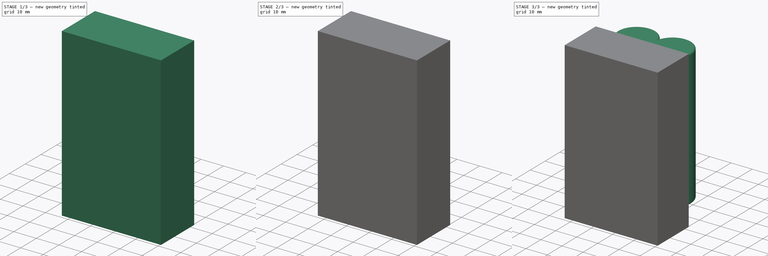
[diagram: build sequence overview — one tinted view per stage of 3, left to right]
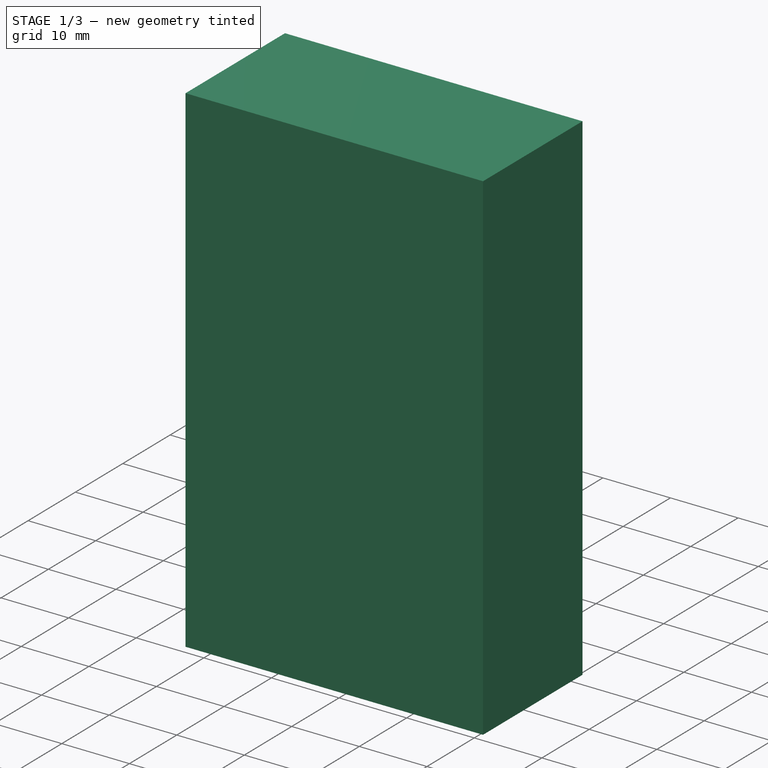
[diagram: stage 1 of 3 — iso view after this stage's code; geometry added in this stage tinted green]
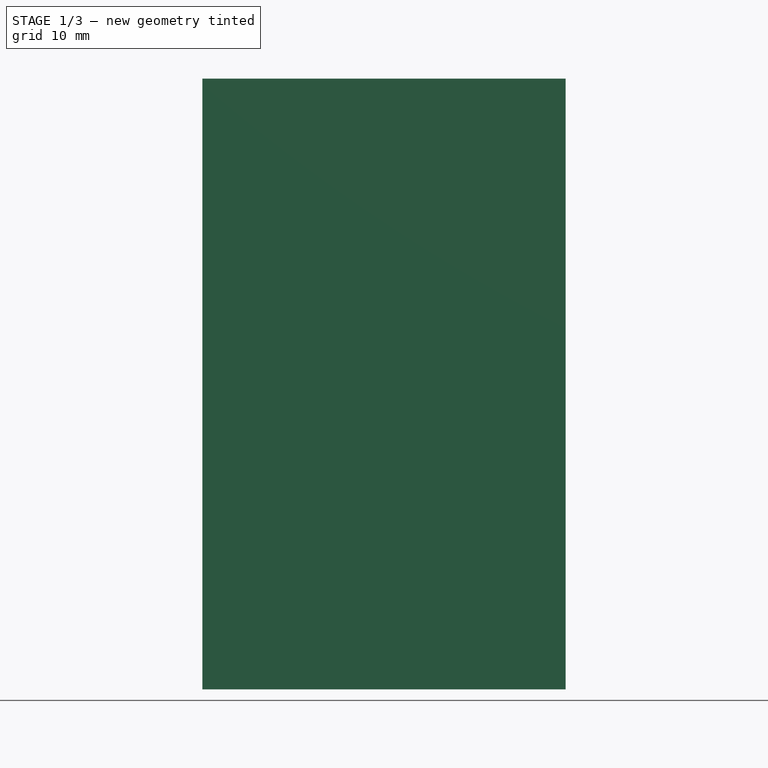
[diagram: stage 1 of 3 — front view after this stage's code; geometry added in this stage tinted green]
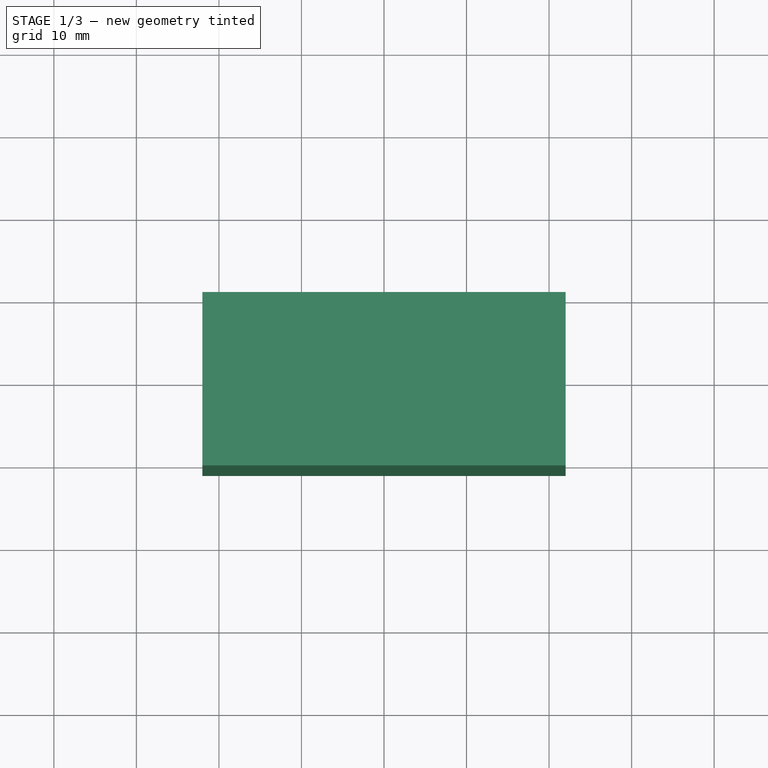
[diagram: stage 1 of 3 — top view after this stage's code; geometry added in this stage tinted green]
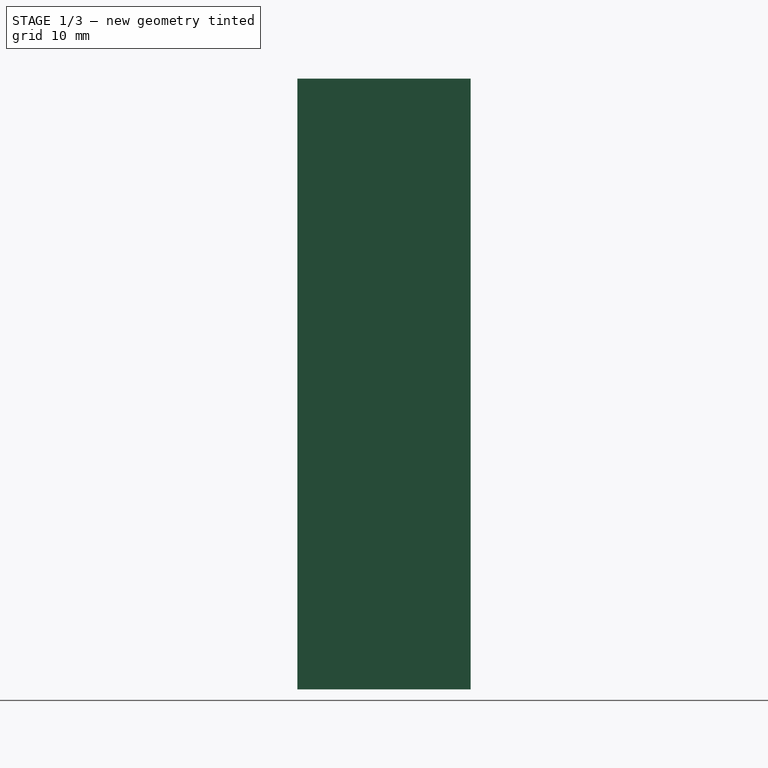
[diagram: stage 1 of 3 — right view after this stage's code; geometry added in this stage tinted green]
FCSTD DOCUMENT  (FreeCAD 0.21R33675 (Git))
Label: BatteryPack
License: All rights reserved
LicenseURL: http://en.wikipedia.org/wiki/All_rights_reserved
objects: Part::FeaturePython×4, Sketcher::SketchObject×2, PartDesign::Pad×1, PartDesign::Pocket×1, PartDesign::Body×1
note: 11 computed .brp shape members not serialized (recipe doc carries the construction recipe); baked Part::Feature solids carry a one-line shape summary decoded from their .brp

FEATURE [Sketcher::SketchObject] Sketch001
  AttachmentOffset = pos=(0,0,-5) rot=(0,0,1;0rad)
  FullyConstrained = true
  MapMode = 5
  Placement = pos=(0,0,-5) rot=(0,0,1;0rad)
  Support = -> [XY_Plane]
  sketch-geometry (4):
    g0: LineSegment StartX=-22 StartY=0 StartZ=0 EndX=22 EndY=0 EndZ=0
    g1: LineSegment StartX=22 StartY=0 StartZ=0 EndX=22 EndY=-21 EndZ=0
    g2: LineSegment StartX=22 StartY=-21 StartZ=0 EndX=-22 EndY=-21 EndZ=0
    g3: LineSegment StartX=-22 StartY=-21 StartZ=0 EndX=-22 EndY=0 EndZ=0
  constraints (11):
    c: Coincident(g0,g1)
    c: Coincident(g1,g2)
    c: Coincident(g2,g3)
    c: Coincident(g3,g0)
    c: Horizontal(g0)
    c: Vertical(g1)
    c: Vertical(g3)
    c: PointOnObject(g0,g-1)
    c: Symmetric(g2,g1,g-2)
    c: DistanceX(g0,g0) = 44
    c: DistanceY(g2,g0) = 21
FEATURE [PartDesign::Pad] Pad
  Direction = (0,0,1)
  Length = 74
  Length2 = 10
  Profile = -> Sketch001
  ReferenceAxis = -> Sketch001 [N_Axis]
  Type = 0
FEATURE [Sketcher::SketchObject] Sketch
  ExternalGeometry = -> [Pad]
  FullyConstrained = true
  MapMode = 5
  Placement = pos=(0,0,0) rot=(0,0.707107,0.707107;3.14159rad)
  Support = -> [Pad]
  sketch-geometry (4):
    g0: LineSegment StartX=-20 StartY=67 StartZ=0 EndX=20 EndY=67 EndZ=0
    g1: LineSegment StartX=20 StartY=67 StartZ=0 EndX=20 EndY=-3 EndZ=0
    g2: LineSegment StartX=20 StartY=-3 StartZ=0 EndX=-20 EndY=-3 EndZ=0
    g3: LineSegment StartX=-20 StartY=-3 StartZ=0 EndX=-20 EndY=67 EndZ=0
  constraints (11):
    c: Coincident(g0,g1)
    c: Coincident(g1,g2)
    c: Coincident(g2,g3)
    c: Coincident(g3,g0)
    c: Horizontal(g2)
    c: Vertical(g1)
    c: Vertical(g3)
    c: DistanceY(g0,g-3) = 2
    c: DistanceX(g-3,g0) = 2
    c: Symmetric(g0,g0,g-2)
    c: DistanceY(g-4,g2) = 2
FEATURE [PartDesign::Pocket] Pocket
  BaseFeature = -> Pad
  Direction = (0,-1,2e-16)
  Length = 19
  Length2 = 5
  Profile = -> Sketch
  ReferenceAxis = -> Sketch [N_Axis]
  Type = 0
FEATURE [PartDesign::Body] Body
  Group = -> [Sketch001,Pad,Sketch,Pocket]
  Origin = -> Origin
  Tip = -> Pocket
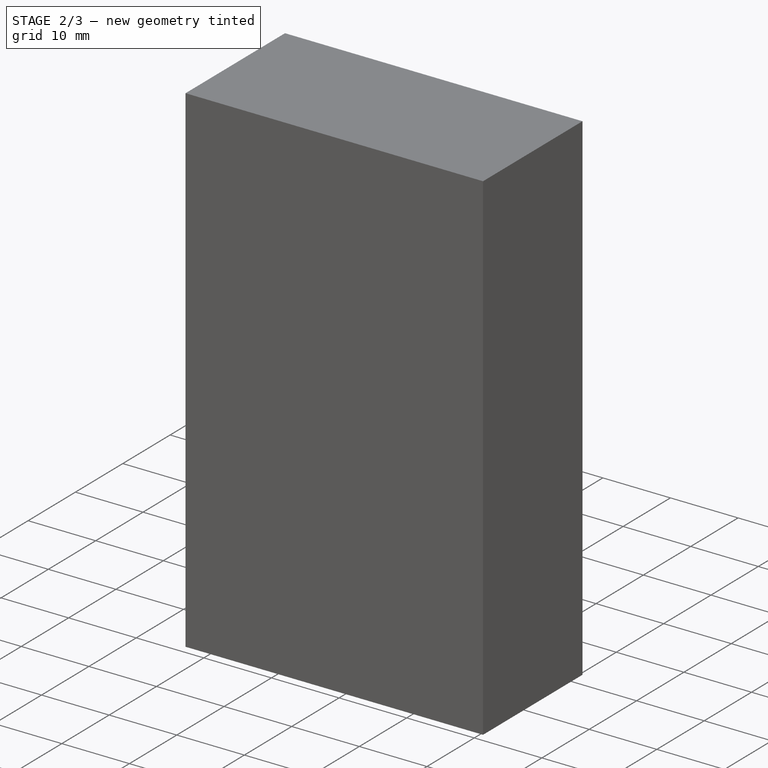
[diagram: stage 2 of 3 — iso view after this stage's code; geometry added in this stage tinted green]
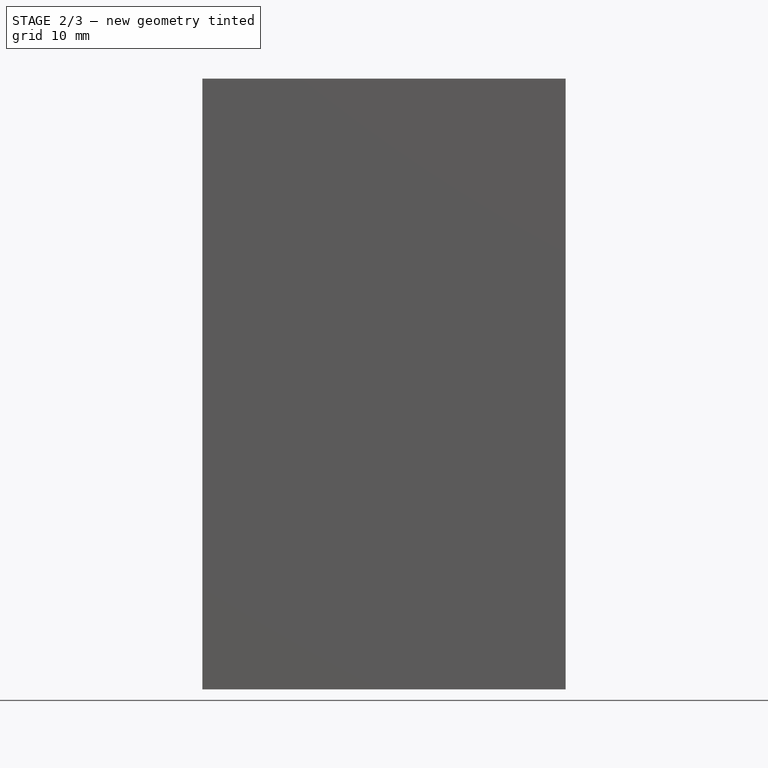
[diagram: stage 2 of 3 — front view after this stage's code; geometry added in this stage tinted green]
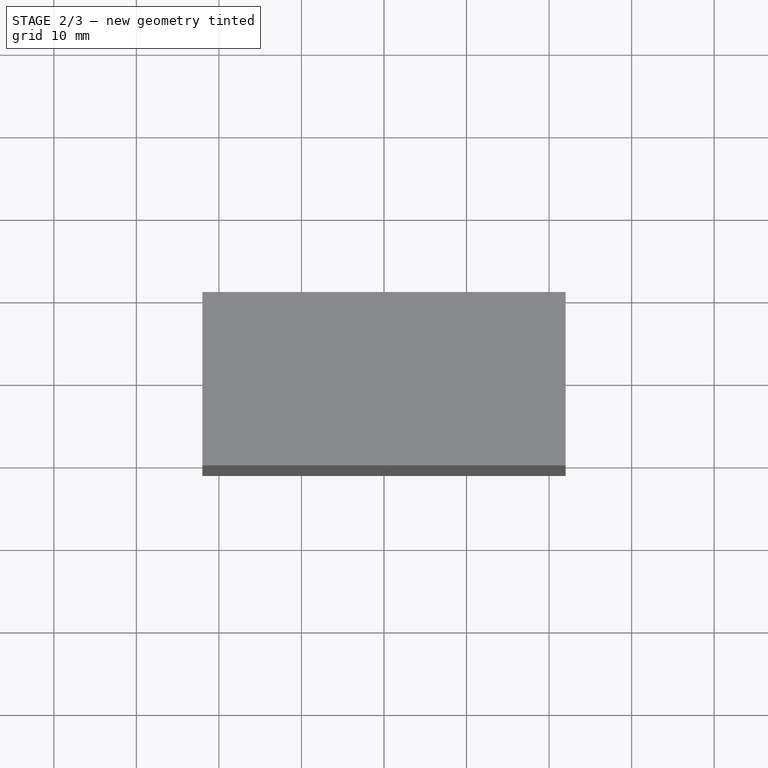
[diagram: stage 2 of 3 — top view after this stage's code; geometry added in this stage tinted green]
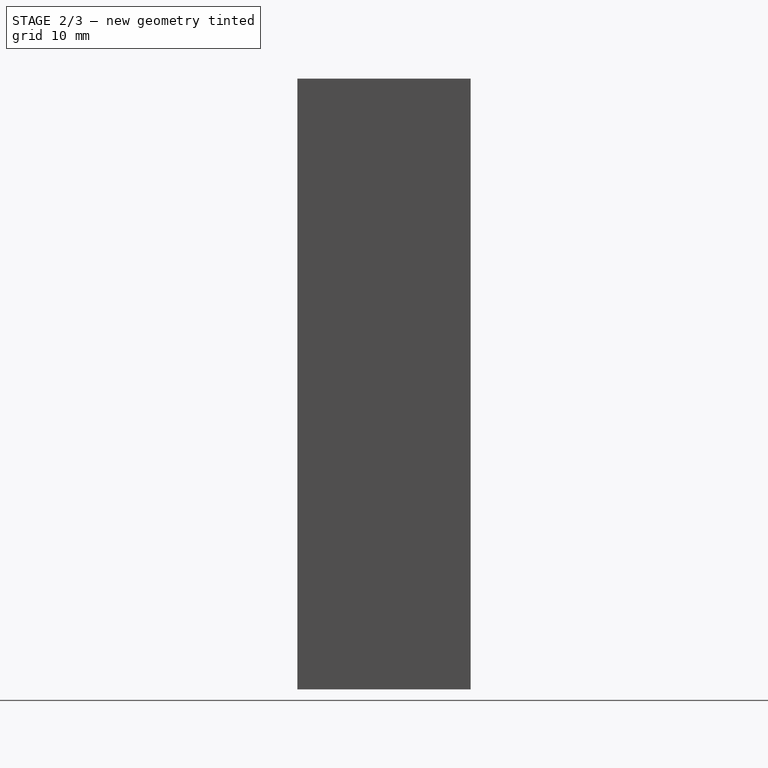
[diagram: stage 2 of 3 — right view after this stage's code; geometry added in this stage tinted green]
FEATURE [Part::FeaturePython] b_Battery_001_002  label="Battery_003"  # a2plus imported part (geometry in sourceFile) (typed FeaturePython)
  Placement = pos=(-9,-9,0) rot=(0,0,1;0rad)
  a2p_Version = 0.4.60k
  fixedPosition = true
  objectType = a2pPart
  sourceFile = ./Battery.FCStd
  subassemblyImport = false
  timeLastImport = 1.67932e+09
  updateColors = true
FEATURE [Part::FeaturePython] b_Battery_001_003  label="Battery_004"  # a2plus imported part (geometry in sourceFile) (typed FeaturePython)
  Placement = pos=(9,-9,0) rot=(0,0,1;0rad)
  a2p_Version = 0.4.60k
  fixedPosition = true
  objectType = a2pPart
  sourceFile = ./Battery.FCStd
  subassemblyImport = false
  timeLastImport = 1.67932e+09
  updateColors = true
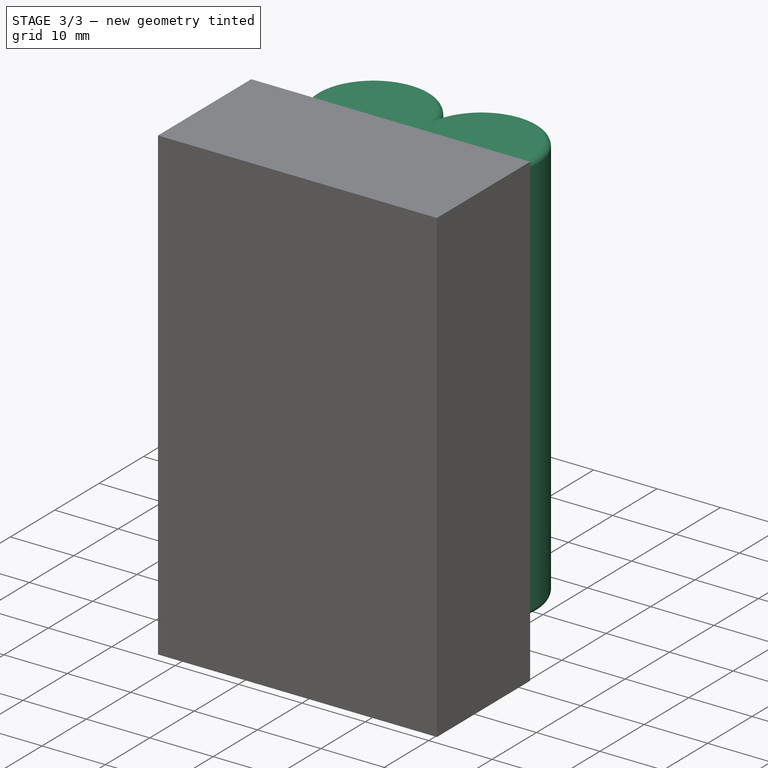
[diagram: stage 3 of 3 — iso view after this stage's code; geometry added in this stage tinted green]
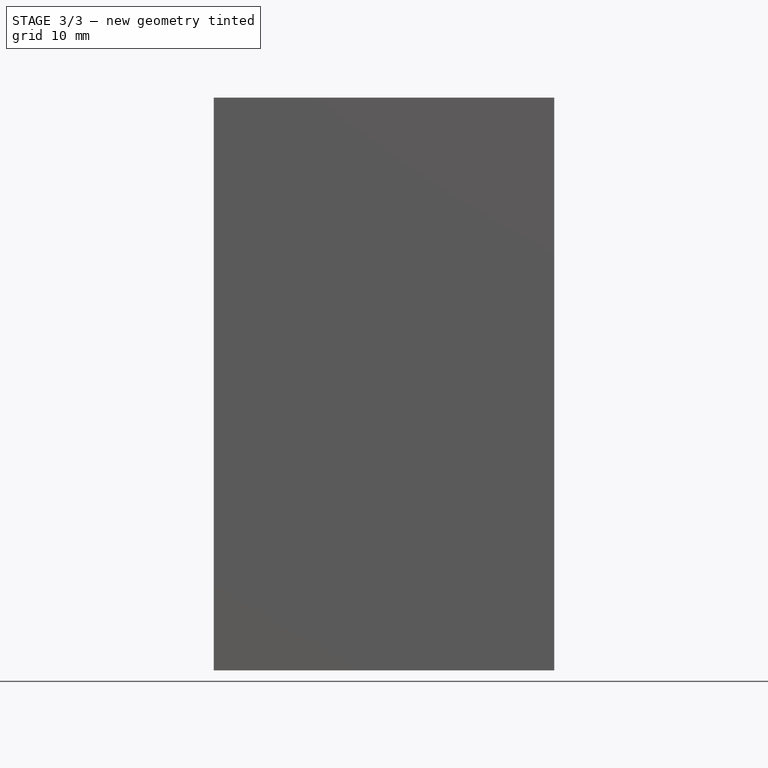
[diagram: stage 3 of 3 — front view after this stage's code; geometry added in this stage tinted green]
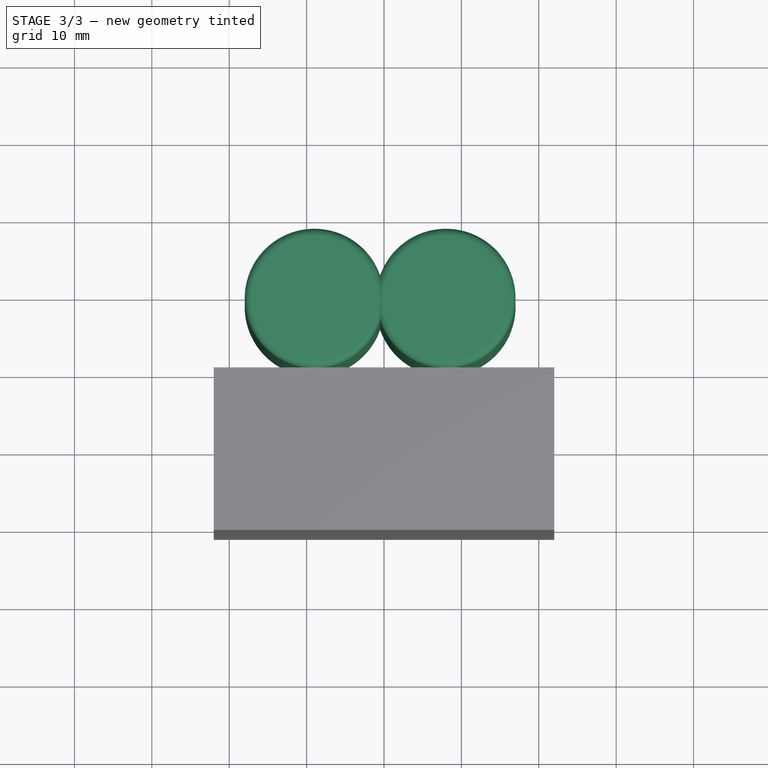
[diagram: stage 3 of 3 — top view after this stage's code; geometry added in this stage tinted green]
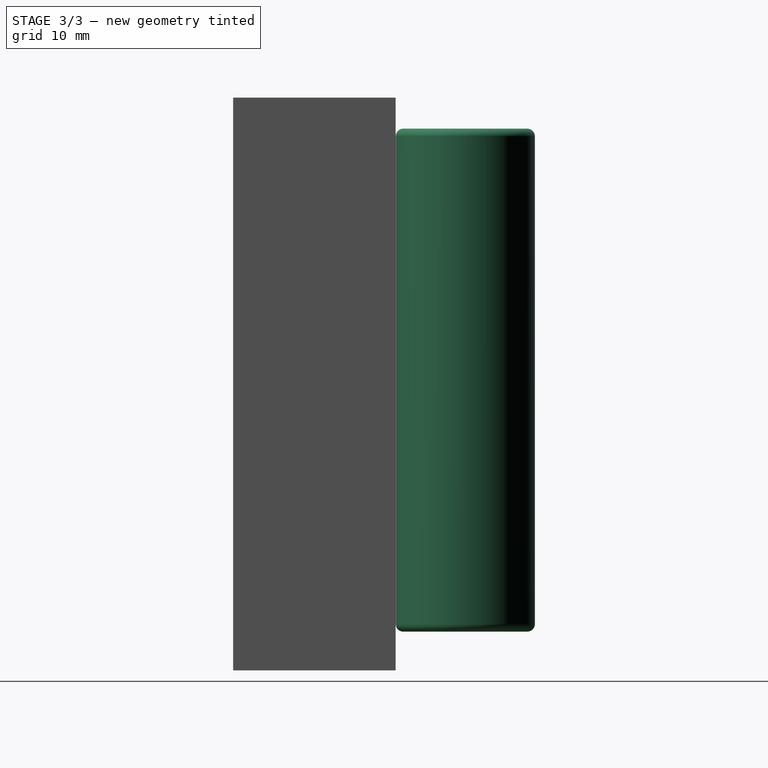
[diagram: stage 3 of 3 — right view after this stage's code; geometry added in this stage tinted green]
FEATURE [Part::FeaturePython] b_Battery_001_  label="Battery_001"  # a2plus imported part (geometry in sourceFile) (typed FeaturePython)
  Placement = pos=(-9,9,0) rot=(0,0,1;0rad)
  a2p_Version = 0.4.60k
  fixedPosition = true
  objectType = a2pPart
  sourceFile = ./Battery.FCStd
  subassemblyImport = false
  timeLastImport = 1.67932e+09
  updateColors = true
FEATURE [Part::FeaturePython] b_Battery_001_001  label="Battery_002"  # a2plus imported part (geometry in sourceFile) (typed FeaturePython)
  Placement = pos=(8,9,0) rot=(0,0,1;0rad)
  a2p_Version = 0.4.60k
  fixedPosition = true
  objectType = a2pPart
  sourceFile = ./Battery.FCStd
  subassemblyImport = false
  timeLastImport = 1.67932e+09
  updateColors = true
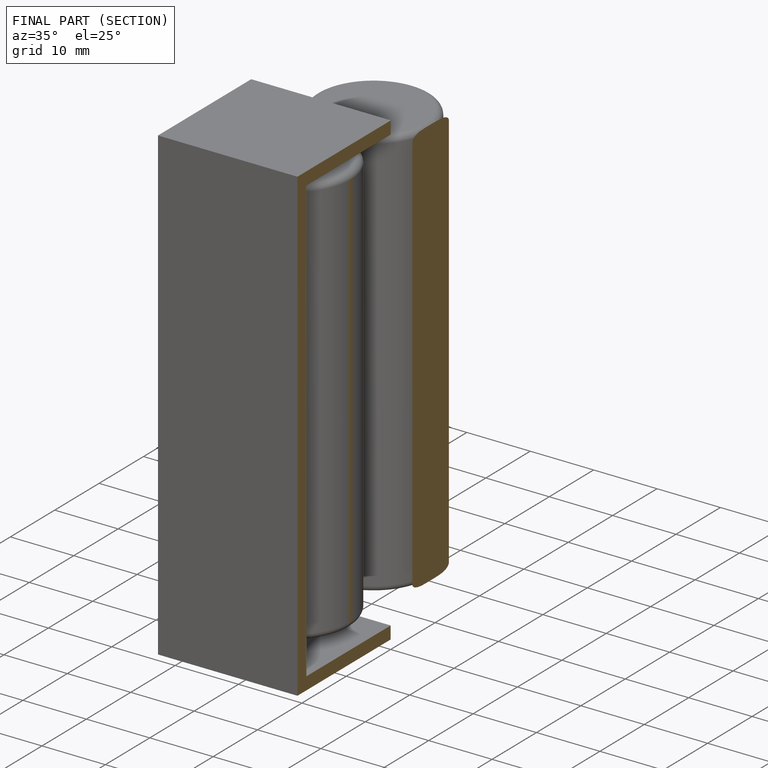
[diagram: finished part — half-section view (interior)]
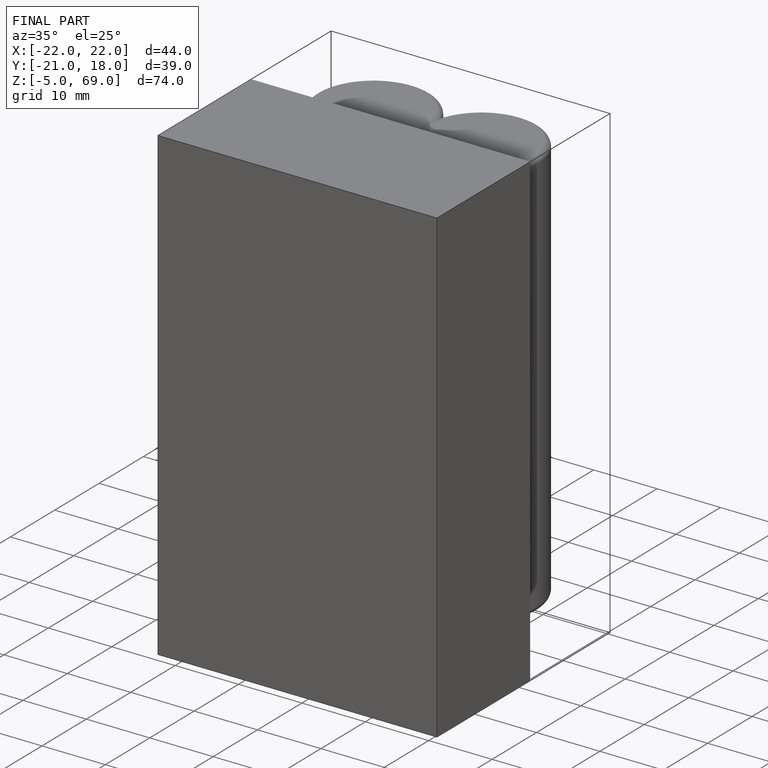
[diagram: finished part — iso view with bounding-box wireframe]
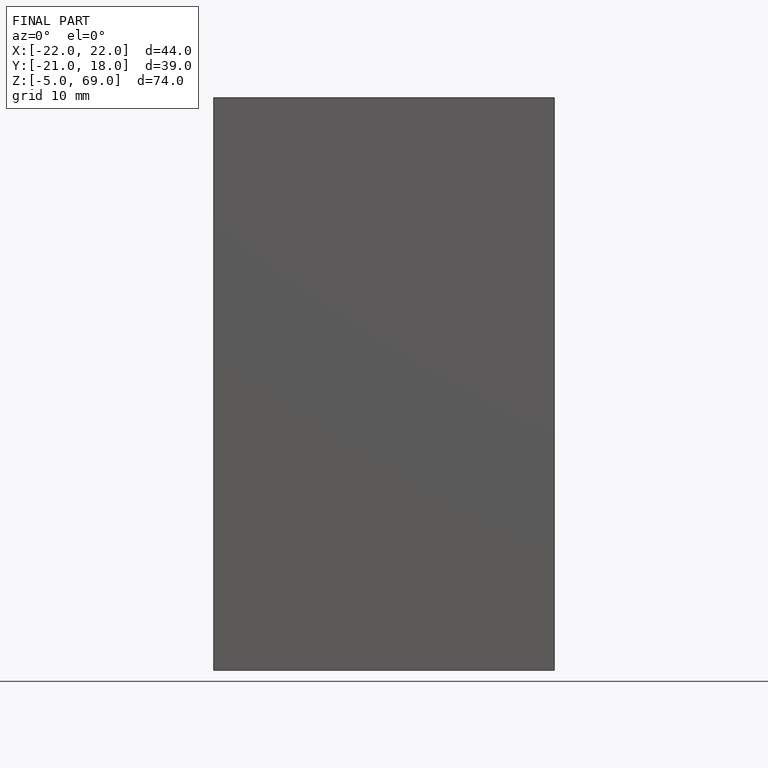
[diagram: finished part — front view with bounding-box wireframe]
